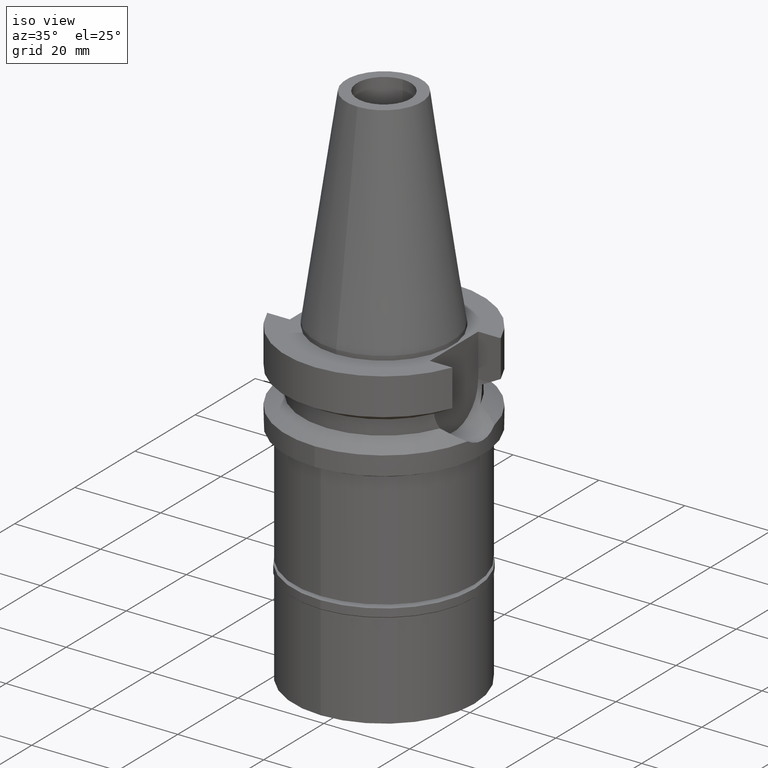
[diagram: clean part render]
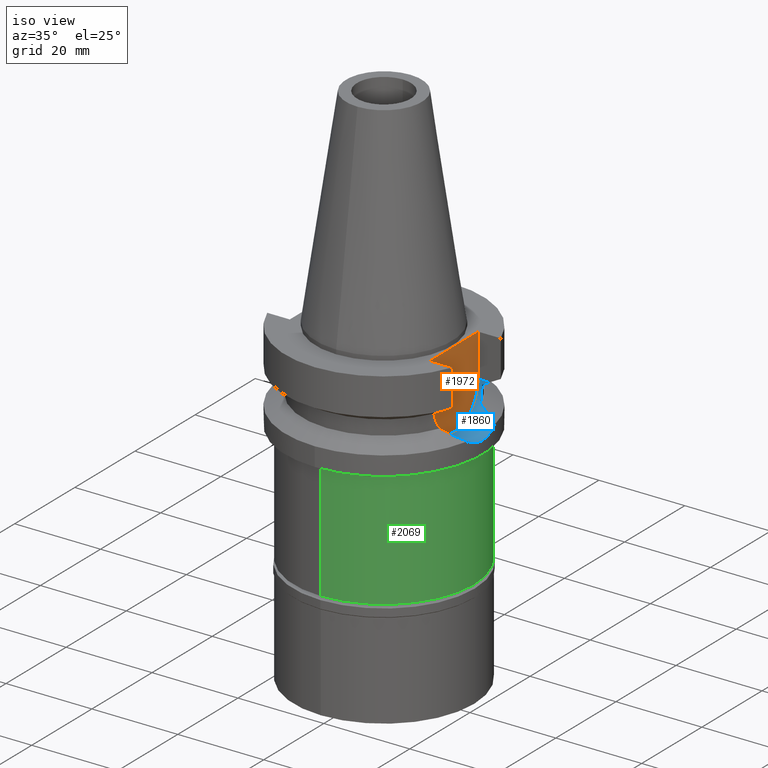
[diagram: same view with three faces highlighted in distinct colors, each labeled with its STEP entity id]
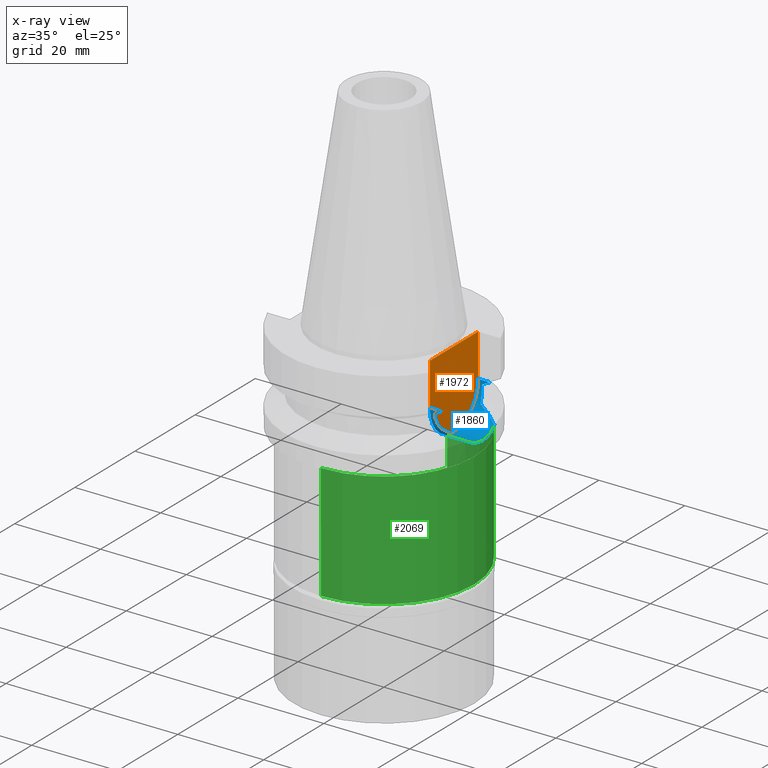
[diagram: x-ray of the same camera — body ghosted, the three highlighted faces saturated]
A machine part, iso view with three faces highlighted in distinct colors.
The next image is the same camera in x-ray (body ghosted, the three faces saturated) — at least one of them is partly hidden behind the body in this view.
Their STEP definitions:

[orange] entity #1972 — the highlighted planar face has unit normal (1, 0, 0).
#45 = VERTEX_POINT ( 'NONE', #2918 ) ;
#172 = VECTOR ( 'NONE', #2040, 1000.000000000000000 ) ;
#315 = LINE ( 'NONE', #1733, #2163 ) ;
#322 = VERTEX_POINT ( 'NONE', #1371 ) ;
#361 = FACE_OUTER_BOUND ( 'NONE', #435, .T. ) ;
#390 = EDGE_CURVE ( 'NONE', #45, #322, #315, .T. ) ;
#435 = EDGE_LOOP ( 'NONE', ( #2091, #1141, #2734, #2272 ) ) ;
#966 = DIRECTION ( 'NONE',  ( 0.0000000000000000000, 0.0000000000000000000, -1.000000000000000000 ) ) ;
#1057 = CIRCLE ( 'NONE', #2671, 8.050000000000000711 ) ;
#1102 = DIRECTION ( 'NONE',  ( 0.0000000000000000000, 1.000000000000000000, 0.0000000000000000000 ) ) ;
#1135 = LINE ( 'NONE', #2311, #172 ) ;
#1141 = ORIENTED_EDGE ( 'NONE', *, *, #1233, .F. ) ;
#1233 = EDGE_CURVE ( 'NONE', #322, #2595, #1057, .T. ) ;
#1311 = PLANE ( 'NONE',  #1943 ) ;
#1371 = CARTESIAN_POINT ( 'NONE',  ( 16.29999999999999716, 8.050000000000000711, -10.94999999999999929 ) ) ;
#1527 = EDGE_CURVE ( 'NONE', #45, #2016, #1932, .T. ) ;
#1587 = DIRECTION ( 'NONE',  ( 0.0000000000000000000, 0.0000000000000000000, -1.000000000000000000 ) ) ;
#1733 = CARTESIAN_POINT ( 'NONE',  ( 16.29999999999999716, 8.050000000000000711, -1.000000000000000000 ) ) ;
#1799 = CARTESIAN_POINT ( 'NONE',  ( 16.29999999999999716, -8.050000000000000711, -1.000000000000000000 ) ) ;
#1932 = LINE ( 'NONE', #2612, #1938 ) ;
#1938 = VECTOR ( 'NONE', #2170, 1000.000000000000000 ) ;
#1943 = AXIS2_PLACEMENT_3D ( 'NONE', #2237, #2946, #1102 ) ;
#1972 = ADVANCED_FACE ( 'NONE', ( #361 ), #1311, .T. ) ;
#2016 = VERTEX_POINT ( 'NONE', #1799 ) ;
#2040 = DIRECTION ( 'NONE',  ( 0.0000000000000000000, 0.0000000000000000000, 1.000000000000000000 ) ) ;
#2083 = EDGE_CURVE ( 'NONE', #2595, #2016, #1135, .T. ) ;
#2091 = ORIENTED_EDGE ( 'NONE', *, *, #2083, .F. ) ;
#2098 = CARTESIAN_POINT ( 'NONE',  ( 16.29999999999999716, -8.050000000000000711, -10.94999999999999929 ) ) ;
#2163 = VECTOR ( 'NONE', #966, 1000.000000000000000 ) ;
#2170 = DIRECTION ( 'NONE',  ( 0.0000000000000000000, -1.000000000000000000, 0.0000000000000000000 ) ) ;
#2237 = CARTESIAN_POINT ( 'NONE',  ( 16.29999999999999716, 0.0000000000000000000, 0.0000000000000000000 ) ) ;
#2272 = ORIENTED_EDGE ( 'NONE', *, *, #1527, .T. ) ;
#2311 = CARTESIAN_POINT ( 'NONE',  ( 16.29999999999999716, -8.050000000000000711, -10.94999999999999929 ) ) ;
#2595 = VERTEX_POINT ( 'NONE', #2098 ) ;
#2612 = CARTESIAN_POINT ( 'NONE',  ( 16.29999999999999716, 8.050000000000000711, -1.000000000000000000 ) ) ;
#2671 = AXIS2_PLACEMENT_3D ( 'NONE', #2984, #3015, #1587 ) ;
#2734 = ORIENTED_EDGE ( 'NONE', *, *, #390, .F. ) ;
#2918 = CARTESIAN_POINT ( 'NONE',  ( 16.29999999999999716, 8.050000000000000711, -1.000000000000000000 ) ) ;
#2946 = DIRECTION ( 'NONE',  ( 1.000000000000000000, 0.0000000000000000000, 0.0000000000000000000 ) ) ;
#2984 = CARTESIAN_POINT ( 'NONE',  ( 16.29999999999999716, 0.0000000000000000000, -10.94999999999999929 ) ) ;
#3015 = DIRECTION ( 'NONE',  ( -1.000000000000000000, 0.0000000000000000000, 0.0000000000000000000 ) ) ;

[blue] entity #1860 — the highlighted cylindrical surface (partial cylindrical patch) has radius 8.05 mm, axis along (1, 0, 0).
#6 = CARTESIAN_POINT ( 'NONE',  ( 18.30417677519795916, -8.050000009833846448, -11.30245973939780235 ) ) ;
#30 = CARTESIAN_POINT ( 'NONE',  ( 18.96736186693999926, -8.050001277873001015, -10.94999977540000025 ) ) ;
#80 = CARTESIAN_POINT ( 'NONE',  ( 18.96736186693999926, -8.050001277873001015, -10.94999977540000025 ) ) ;
#94 = CARTESIAN_POINT ( 'NONE',  ( 17.50086807631718600, -7.400179108393509786, -14.16641331484967559 ) ) ;
#95 = CARTESIAN_POINT ( 'NONE',  ( 22.77613773200974379, -3.202598962454526799, -18.33823203038533833 ) ) ;
#121 = CARTESIAN_POINT ( 'NONE',  ( 17.25079912590762632, -7.963111191490122920, -12.16468723360218007 ) ) ;
#128 = CARTESIAN_POINT ( 'NONE',  ( 22.94843267720124658, 1.547385716471629369, -18.85239223955501231 ) ) ;
#173 = CARTESIAN_POINT ( 'NONE',  ( 22.91436099164421236, 1.985013697924416842, -18.75255439334301855 ) ) ;
#174 = CARTESIAN_POINT ( 'NONE',  ( 16.29999999999999716, 8.050000000000000711, -10.94999999999999929 ) ) ;
#183 = VERTEX_POINT ( 'NONE', #2709 ) ;
#189 = CARTESIAN_POINT ( 'NONE',  ( 17.23531622902000038, 7.996491146276001771, -11.87660607782000000 ) ) ;
#190 = CARTESIAN_POINT ( 'NONE',  ( 22.55786346208000026, -4.488072640470000430, -17.63279163029000074 ) ) ;
#200 = ORIENTED_EDGE ( 'NONE', *, *, #3006, .T. ) ;
#207 = CARTESIAN_POINT ( 'NONE',  ( 17.68527465920666586, 6.947815191073233088, -15.03067689317560784 ) ) ;
#210 = VERTEX_POINT ( 'NONE', #1344 ) ;
#246 = CARTESIAN_POINT ( 'NONE',  ( 21.95747312947040086, 4.900254791556259981, -17.34184556698619772 ) ) ;
#263 = CARTESIAN_POINT ( 'NONE',  ( 22.26948351223554923, 4.696292300769631112, -17.49295411742071238 ) ) ;
#276 = ORIENTED_EDGE ( 'NONE', *, *, #1233, .T. ) ;
#313 = B_SPLINE_CURVE_WITH_KNOTS ( 'NONE', 3,
 ( #474, #263, #246, #2349, #1208, #1467, #2138, #971, #2870, #1907, #489, #2856, #2367 ),
 .UNSPECIFIED., .F., .F.,
 ( 4, 2, 1, 1, 1, 2, 2, 4 ),
 ( 0.0000000000000000000, 0.2500000000000039413, 0.3750000000000064948, 0.4375000000000064948, 0.4687500000000065503, 0.4843750000000070499, 0.5000000000000074385, 1.000000000000000000 ),
 .UNSPECIFIED. ) ;
#322 = VERTEX_POINT ( 'NONE', #1371 ) ;
#328 = CARTESIAN_POINT ( 'NONE',  ( 17.38156622603388968, -7.673725376824387823, -13.38458314372824454 ) ) ;
#405 = EDGE_CURVE ( 'NONE', #859, #523, #1531, .T. ) ;
#431 = CARTESIAN_POINT ( 'NONE',  ( 19.69410173734316771, -6.060669938305753845, -16.25007166132096614 ) ) ;
#439 = ORIENTED_EDGE ( 'NONE', *, *, #2436, .T. ) ;
#451 = CARTESIAN_POINT ( 'NONE',  ( 17.43825996245988819, 7.543902337193857832, -13.75966030957123820 ) ) ;
#465 = AXIS2_PLACEMENT_3D ( 'NONE', #2255, #549, #565 ) ;
#469 = CARTESIAN_POINT ( 'NONE',  ( 17.62113139266513429, 7.108367418708962937, -14.74095000844944536 ) ) ;
#474 = CARTESIAN_POINT ( 'NONE',  ( 22.55786346208000026, 4.488072640470000430, -17.63279163029000074 ) ) ;
#483 = EDGE_CURVE ( 'NONE', #1673, #925, #1021, .T. ) ;
#486 = CARTESIAN_POINT ( 'NONE',  ( 17.32791110705245075, 7.797407455527095799, -13.04850004286706699 ) ) ;
#489 = CARTESIAN_POINT ( 'NONE',  ( 19.73004640630102813, 6.069927389815940266, -16.26677919667542582 ) ) ;
#517 = EDGE_CURVE ( 'NONE', #523, #1846, #1716, .T. ) ;
#523 = VERTEX_POINT ( 'NONE', #1306 ) ;
#549 = DIRECTION ( 'NONE',  ( 1.000000000000000000, 0.0000000000000000000, 0.0000000000000000000 ) ) ;
#565 = DIRECTION ( 'NONE',  ( 0.0000000000000000000, 0.0000000000000000000, -1.000000000000000000 ) ) ;
#575 = CARTESIAN_POINT ( 'NONE',  ( 23.00000063371999914, 1.443369101333999963E-13, -19.00000207062000257 ) ) ;
#593 = CARTESIAN_POINT ( 'NONE',  ( 22.83400210089063620, -2.757209696368690288, -18.51367956029167416 ) ) ;
#664 = CARTESIAN_POINT ( 'NONE',  ( 18.77240399682779781, -6.425413999993287995, -15.80788163195203921 ) ) ;
#668 = DIRECTION ( 'NONE',  ( 0.9999999999976612042, -2.130104035149915589E-06, -3.746083735727856140E-07 ) ) ;
#714 = CARTESIAN_POINT ( 'NONE',  ( 17.42527060183159904, 7.573803216216433043, -13.67765101995079924 ) ) ;
#794 = CARTESIAN_POINT ( 'NONE',  ( 17.47454244272013923, 7.459747681859946411, -13.97656327294564527 ) ) ;
#796 = CARTESIAN_POINT ( 'NONE',  ( 22.87999223066082166, -2.345192716999932703, -18.65082438113866914 ) ) ;
#839 = CARTESIAN_POINT ( 'NONE',  ( 17.41902886904237491, -7.588145056449484116, -13.63749496349419843 ) ) ;
#855 = CARTESIAN_POINT ( 'NONE',  ( 22.89878317144584230, 2.154771475023029570, -18.70653894763858105 ) ) ;
#859 = VERTEX_POINT ( 'NONE', #30 ) ;
#925 = VERTEX_POINT ( 'NONE', #1230 ) ;
#938 = CARTESIAN_POINT ( 'NONE',  ( 17.51072787940859854, 7.374839633894187507, -14.18046796346550309 ) ) ;
#964 = CARTESIAN_POINT ( 'NONE',  ( 20.02089082506718398, -5.918315301219667646, -16.40720064908779818 ) ) ;
#971 = CARTESIAN_POINT ( 'NONE',  ( 20.63928245645380954, 5.628726883249373536, -16.70501526014500726 ) ) ;
#990 = ORIENTED_EDGE ( 'NONE', *, *, #2928, .F. ) ;
#1021 = B_SPLINE_CURVE_WITH_KNOTS ( 'NONE', 3,
 ( #1658, #207, #469, #2106, #938, #794, #2558, #451, #1873, #714, #2592, #1400, #486, #2327, #1435 ),
 .UNSPECIFIED., .F., .F.,
 ( 4, 2, 2, 1, 1, 1, 2, 2, 4 ),
 ( 0.0000000000000000000, 0.2500000000000016098, 0.3750000000000026645, 0.4375000000000037192, 0.4687500000000031641, 0.4843750000000026645, 0.4921875000000029421, 0.5000000000000032196, 1.000000000000000000 ),
 .UNSPECIFIED. ) ;
#1057 = CIRCLE ( 'NONE', #2671, 8.050000000000000711 ) ;
#1068 = CARTESIAN_POINT ( 'NONE',  ( 17.41740973184857921, -7.591861673413504263, -13.62698225825793941 ) ) ;
#1071 = CARTESIAN_POINT ( 'NONE',  ( 22.86647651648096868, -2.473921394403583385, -18.61066494074714583 ) ) ;
#1089 = CARTESIAN_POINT ( 'NONE',  ( 22.70474339552581000, 3.749827574165796484, -18.12858705042842189 ) ) ;
#1100 = CARTESIAN_POINT ( 'NONE',  ( 18.96738966530000070, 8.049994318182998043, -10.95000099923000114 ) ) ;
#1152 = LINE ( 'NONE', #174, #1363 ) ;
#1153 = CARTESIAN_POINT ( 'NONE',  ( 17.72682660392796095, -8.027186146807153477, -11.61172867117429419 ) ) ;
#1155 = B_SPLINE_CURVE_WITH_KNOTS ( 'NONE', 3,
 ( #2279, #2765, #664, #1609, #431, #964, #1886, #1186, #1899, #2587, #3041, #2831, #2782, #2847 ),
 .UNSPECIFIED., .F., .F.,
 ( 4, 2, 2, 1, 1, 2, 2, 4 ),
 ( 0.0000000000000000000, 0.2499999999999948930, 0.3749999999999923395, 0.4374999999999906741, 0.4687499999999901190, 0.4843749999999901745, 0.4999999999999902300, 1.000000000000000000 ),
 .UNSPECIFIED. ) ;
#1162 = ORIENTED_EDGE ( 'NONE', *, *, #2125, .F. ) ;
#1186 = CARTESIAN_POINT ( 'NONE',  ( 20.36436667541638101, -5.761230050744451603, -16.57253154911682458 ) ) ;
#1208 = CARTESIAN_POINT ( 'NONE',  ( 21.19341988183201764, 5.344394474838599862, -16.97240432406389843 ) ) ;
#1230 = CARTESIAN_POINT ( 'NONE',  ( 17.23531622902000038, 7.996491146276001771, -11.87660607782000000 ) ) ;
#1233 = EDGE_CURVE ( 'NONE', #322, #2595, #1057, .T. ) ;
#1253 = ORIENTED_EDGE ( 'NONE', *, *, #405, .T. ) ;
#1254 = CARTESIAN_POINT ( 'NONE',  ( 18.96736186693999926, -8.050001277873001015, -10.94999977540000025 ) ) ;
#1270 = CARTESIAN_POINT ( 'NONE',  ( 17.75736593456000278, -6.758398853743999624, -15.32339055352999857 ) ) ;
#1282 = CARTESIAN_POINT ( 'NONE',  ( 22.96072292176802065, -1.550239297806613958, -18.89053771800536552 ) ) ;
#1306 = CARTESIAN_POINT ( 'NONE',  ( 17.23531135313000107, -7.996501749111999402, -11.87660739354000050 ) ) ;
#1309 = CARTESIAN_POINT ( 'NONE',  ( 22.63131207852558902, -4.118906632266526202, -17.88071853761644192 ) ) ;
#1322 = CARTESIAN_POINT ( 'NONE',  ( 17.23531135313000107, -7.996501749111999402, -11.87660739354000050 ) ) ;
#1344 = CARTESIAN_POINT ( 'NONE',  ( 18.96738966530000070, 8.049994318182998043, -10.95000099923000114 ) ) ;
#1363 = VECTOR ( 'NONE', #668, 1000.000000000000000 ) ;
#1371 = CARTESIAN_POINT ( 'NONE',  ( 16.29999999999999716, 8.050000000000000711, -10.94999999999999929 ) ) ;
#1400 = CARTESIAN_POINT ( 'NONE',  ( 17.42163631444919858, 7.582155995951294969, -13.65434988420305729 ) ) ;
#1412 = EDGE_CURVE ( 'NONE', #2496, #1673, #313, .T. ) ;
#1435 = CARTESIAN_POINT ( 'NONE',  ( 17.23531622902000038, 7.996491146276001771, -11.87660607782000000 ) ) ;
#1467 = CARTESIAN_POINT ( 'NONE',  ( 20.87388838209990638, 5.511312042766353336, -16.81816514290696674 ) ) ;
#1477 = CARTESIAN_POINT ( 'NONE',  ( 22.87445461030406690, -2.398694468097761323, -18.63437673731583288 ) ) ;
#1490 = B_SPLINE_CURVE_WITH_KNOTS ( 'NONE', 3,
 ( #2899, #1309, #1493, #95, #2706, #593, #2177, #1071, #1477, #1506, #796, #2678, #1282, #1720, #575 ),
 .UNSPECIFIED., .F., .F.,
 ( 4, 2, 2, 1, 1, 1, 2, 2, 4 ),
 ( 0.0000000000000000000, 0.2500000000000028866, 0.3750000000000046629, 0.4375000000000049960, 0.4687500000000048850, 0.4843750000000051625, 0.4921875000000050515, 0.5000000000000049960, 1.000000000000000000 ),
 .UNSPECIFIED. ) ;
#1493 = CARTESIAN_POINT ( 'NONE',  ( 22.69506172306373415, -3.747764842209013736, -18.08562956465713256 ) ) ;
#1506 = CARTESIAN_POINT ( 'NONE',  ( 22.87778854850082766, -2.366576874369036076, -18.64427962363670943 ) ) ;
#1531 = B_SPLINE_CURVE_WITH_KNOTS ( 'NONE', 3,
 ( #80, #6, #1153, #2190 ),
 .UNSPECIFIED., .F., .F.,
 ( 4, 4 ),
 ( 0.0000000000000000000, 1.000000000000000000 ),
 .UNSPECIFIED. ) ;
#1538 = ORIENTED_EDGE ( 'NONE', *, *, #1412, .T. ) ;
#1544 = CARTESIAN_POINT ( 'NONE',  ( 17.61322740991396429, -7.137115852045588404, -14.73814199274329084 ) ) ;
#1546 = CARTESIAN_POINT ( 'NONE',  ( 18.30334768190532557, 8.049999956193227391, -11.30291651679201870 ) ) ;
#1587 = DIRECTION ( 'NONE',  ( 0.0000000000000000000, 0.0000000000000000000, -1.000000000000000000 ) ) ;
#1595 = CARTESIAN_POINT ( 'NONE',  ( 23.00000063371999914, 1.443369101333999963E-13, -19.00000207062000257 ) ) ;
#1609 = CARTESIAN_POINT ( 'NONE',  ( 19.46906232077696686, -6.153562748221116152, -16.14199193557223211 ) ) ;
#1658 = CARTESIAN_POINT ( 'NONE',  ( 17.75736593456000278, 6.758398853743999624, -15.32339055352999857 ) ) ;
#1673 = VERTEX_POINT ( 'NONE', #2640 ) ;
#1700 = VECTOR ( 'NONE', #2039, 1000.000000000000114 ) ;
#1716 = B_SPLINE_CURVE_WITH_KNOTS ( 'NONE', 3,
 ( #1322, #121, #2689, #2035, #2020, #2262, #328, #1808, #1779, #2425, #1068, #839, #94, #1544, #2445 ),
 .UNSPECIFIED., .F., .F.,
 ( 4, 2, 2, 1, 1, 1, 2, 2, 4 ),
 ( 0.0000000000000000000, 0.2500000000000057732, 0.3750000000000092149, 0.4375000000000107692, 0.4687500000000115463, 0.4843750000000119349, 0.4921875000000116573, 0.5000000000000113243, 1.000000000000000000 ),
 .UNSPECIFIED. ) ;
#1720 = CARTESIAN_POINT ( 'NONE',  ( 23.00000063371999914, -0.7635895630532860689, -19.00000000000000355 ) ) ;
#1769 = CARTESIAN_POINT ( 'NONE',  ( 22.55786346208000026, 4.488072640470000430, -17.63279163029000074 ) ) ;
#1779 = CARTESIAN_POINT ( 'NONE',  ( 17.41029288300379463, -7.608179589552457323, -13.58035844464430575 ) ) ;
#1798 = CARTESIAN_POINT ( 'NONE',  ( 22.89059138668635285, 2.239534525042667479, -18.68227636466271946 ) ) ;
#1808 = CARTESIAN_POINT ( 'NONE',  ( 17.40050758145919474, -7.630565565469848544, -13.51508960625903555 ) ) ;
#1836 = CARTESIAN_POINT ( 'NONE',  ( 22.55786346208000026, 4.488072640470000430, -17.63279163029000074 ) ) ;
#1846 = VERTEX_POINT ( 'NONE', #1270 ) ;
#1860 = ADVANCED_FACE ( 'NONE', ( #1982 ), #2655, .F. ) ;
#1867 = EDGE_LOOP ( 'NONE', ( #1538, #2028, #439, #1162, #276, #990, #1253, #2090, #1878, #2565, #200 ) ) ;
#1873 = CARTESIAN_POINT ( 'NONE',  ( 17.42911851113775157, 7.564954524542320868, -13.70217975904774477 ) ) ;
#1878 = ORIENTED_EDGE ( 'NONE', *, *, #2564, .T. ) ;
#1886 = CARTESIAN_POINT ( 'NONE',  ( 20.18159285964787841, -5.846383981996909007, -16.48451795112418594 ) ) ;
#1899 = CARTESIAN_POINT ( 'NONE',  ( 20.44168861976523743, -5.724480107251792127, -16.60978189773313218 ) ) ;
#1907 = CARTESIAN_POINT ( 'NONE',  ( 20.56945519801698907, 5.662943313299061643, -16.67135258765440042 ) ) ;
#1982 = FACE_OUTER_BOUND ( 'NONE', #1867, .T. ) ;
#2020 = CARTESIAN_POINT ( 'NONE',  ( 17.33753429472910312, -7.772924035330798453, -13.04956639104181626 ) ) ;
#2022 = CARTESIAN_POINT ( 'NONE',  ( 17.72598986981198976, 8.027133616248125492, -11.61218197823705545 ) ) ;
#2023 = CARTESIAN_POINT ( 'NONE',  ( 22.99017816581165974, 0.7692921464577845425, -18.97278688085471288 ) ) ;
#2028 = ORIENTED_EDGE ( 'NONE', *, *, #483, .T. ) ;
#2035 = CARTESIAN_POINT ( 'NONE',  ( 17.32020187250967425, -7.811452264079356667, -12.90108126328219740 ) ) ;
#2039 = DIRECTION ( 'NONE',  ( -0.9999999999998816502, 4.790775581495907912E-07, -8.420253777260848103E-08 ) ) ;
#2090 = ORIENTED_EDGE ( 'NONE', *, *, #517, .T. ) ;
#2098 = CARTESIAN_POINT ( 'NONE',  ( 16.29999999999999716, -8.050000000000000711, -10.94999999999999929 ) ) ;
#2106 = CARTESIAN_POINT ( 'NONE',  ( 17.53683850607051653, 7.312769253924538582, -14.31902480999137950 ) ) ;
#2125 = EDGE_CURVE ( 'NONE', #322, #210, #1152, .T. ) ;
#2138 = CARTESIAN_POINT ( 'NONE',  ( 20.71024576433280373, 5.593671726611467498, -16.73923149005364053 ) ) ;
#2177 = CARTESIAN_POINT ( 'NONE',  ( 22.84972471004551409, -2.625489052305981730, -18.56078264746372852 ) ) ;
#2190 = CARTESIAN_POINT ( 'NONE',  ( 17.23531135313000107, -7.996501749111999402, -11.87660739354000050 ) ) ;
#2236 = CARTESIAN_POINT ( 'NONE',  ( 23.00000063371999914, 0.3818371252270340577, -19.00000000000001066 ) ) ;
#2254 = CARTESIAN_POINT ( 'NONE',  ( 22.88321380690928919, 2.313548464796129078, -18.66039023119281026 ) ) ;
#2255 = CARTESIAN_POINT ( 'NONE',  ( 16.29999999999999716, 0.0000000000000000000, -10.94999999999999929 ) ) ;
#2262 = CARTESIAN_POINT ( 'NONE',  ( 17.36640948880742741, -7.707982828101324735, -13.27282317322025129 ) ) ;
#2279 = CARTESIAN_POINT ( 'NONE',  ( 17.75736593456000278, -6.758398853743999624, -15.32339055352999857 ) ) ;
#2303 = EDGE_CURVE ( 'NONE', #3016, #183, #1490, .T. ) ;
#2327 = CARTESIAN_POINT ( 'NONE',  ( 17.26628505399860103, 7.929743580510503875, -12.45264544718342314 ) ) ;
#2349 = CARTESIAN_POINT ( 'NONE',  ( 21.45401190594164476, 5.197756024952405518, -17.09835376329824896 ) ) ;
#2367 = CARTESIAN_POINT ( 'NONE',  ( 17.75736593456000278, 6.758398853743999624, -15.32339055352999857 ) ) ;
#2403 = LINE ( 'NONE', #1254, #1700 ) ;
#2425 = CARTESIAN_POINT ( 'NONE',  ( 17.41455400305832768, -7.598412036627368416, -13.60833259787202820 ) ) ;
#2436 = EDGE_CURVE ( 'NONE', #925, #210, #2464, .T. ) ;
#2445 = CARTESIAN_POINT ( 'NONE',  ( 17.75736593456000278, -6.758398853743999624, -15.32339055352999857 ) ) ;
#2464 = B_SPLINE_CURVE_WITH_KNOTS ( 'NONE', 3,
 ( #189, #2022, #1546, #1100 ),
 .UNSPECIFIED., .F., .F.,
 ( 4, 4 ),
 ( 0.0000000000000000000, 1.000000000000000000 ),
 .UNSPECIFIED. ) ;
#2496 = VERTEX_POINT ( 'NONE', #1836 ) ;
#2520 = CARTESIAN_POINT ( 'NONE',  ( 22.88699429150508990, 2.275833945443854756, -18.67160857845627930 ) ) ;
#2539 = B_SPLINE_CURVE_WITH_KNOTS ( 'NONE', 3,
 ( #1595, #2236, #2023, #2945, #128, #2961, #173, #855, #1798, #2520, #2721, #2254, #2741, #1089, #1769 ),
 .UNSPECIFIED., .F., .F.,
 ( 4, 2, 2, 1, 1, 1, 2, 2, 4 ),
 ( 0.0000000000000000000, 0.2500000000000085487, 0.3750000000000127121, 0.4375000000000149880, 0.4687500000000158207, 0.4843750000000163203, 0.4921875000000167089, 0.5000000000000170974, 1.000000000000000000 ),
 .UNSPECIFIED. ) ;
#2558 = CARTESIAN_POINT ( 'NONE',  ( 17.45719485020201844, 7.500152504448616142, -13.87559139655189355 ) ) ;
#2564 = EDGE_CURVE ( 'NONE', #1846, #3016, #1155, .T. ) ;
#2565 = ORIENTED_EDGE ( 'NONE', *, *, #2303, .T. ) ;
#2587 = CARTESIAN_POINT ( 'NONE',  ( 20.49301220689103431, -5.699924389956656512, -16.63451102356273736 ) ) ;
#2592 = CARTESIAN_POINT ( 'NONE',  ( 17.42272085241554791, 7.579664041000407693, -13.66132223650644661 ) ) ;
#2595 = VERTEX_POINT ( 'NONE', #2098 ) ;
#2640 = CARTESIAN_POINT ( 'NONE',  ( 17.75736593456000278, 6.758398853743999624, -15.32339055352999857 ) ) ;
#2655 = CYLINDRICAL_SURFACE ( 'NONE', #465, 8.050000000000000711 ) ;
#2671 = AXIS2_PLACEMENT_3D ( 'NONE', #2984, #3015, #1587 ) ;
#2678 = CARTESIAN_POINT ( 'NONE',  ( 22.88094006936554692, -2.335937757597574382, -18.65363902239957739 ) ) ;
#2689 = CARTESIAN_POINT ( 'NONE',  ( 17.27395772734975310, -7.913379800481585846, -12.45762674857386720 ) ) ;
#2706 = CARTESIAN_POINT ( 'NONE',  ( 22.80073832534822031, -3.022754176033157769, -18.41332850632801055 ) ) ;
#2709 = CARTESIAN_POINT ( 'NONE',  ( 23.00000063371999914, 1.443369101333999963E-13, -19.00000207062000257 ) ) ;
#2721 = CARTESIAN_POINT ( 'NONE',  ( 22.88457704354326694, 2.300027115010400358, -18.66443675561224680 ) ) ;
#2741 = CARTESIAN_POINT ( 'NONE',  ( 22.81283258110581258, 3.006578350123032095, -18.45139701111728670 ) ) ;
#2765 = CARTESIAN_POINT ( 'NONE',  ( 18.27924501519427736, -6.597549422627201565, -15.57195847756570650 ) ) ;
#2782 = CARTESIAN_POINT ( 'NONE',  ( 21.98108115858349265, -4.904528137356409800, -17.35310574077606205 ) ) ;
#2831 = CARTESIAN_POINT ( 'NONE',  ( 21.30979308134237726, -5.303996943103468809, -17.02817402594463658 ) ) ;
#2847 = CARTESIAN_POINT ( 'NONE',  ( 22.55786346208000026, -4.488072640470000430, -17.63279163029000074 ) ) ;
#2856 = CARTESIAN_POINT ( 'NONE',  ( 18.80116219516603238, 6.436688248829694814, -15.82054454809797939 ) ) ;
#2870 = CARTESIAN_POINT ( 'NONE',  ( 20.59178897177729439, 5.652042537672824274, -16.68211846729052183 ) ) ;
#2899 = CARTESIAN_POINT ( 'NONE',  ( 22.55786346208000026, -4.488072640470000430, -17.63279163029000074 ) ) ;
#2928 = EDGE_CURVE ( 'NONE', #859, #2595, #2403, .T. ) ;
#2945 = CARTESIAN_POINT ( 'NONE',  ( 22.96071076208666284, 1.352603942406116033, -18.88798258441913802 ) ) ;
#2961 = CARTESIAN_POINT ( 'NONE',  ( 22.92633212440749801, 1.839198316306072778, -18.78771497115880251 ) ) ;
#2984 = CARTESIAN_POINT ( 'NONE',  ( 16.29999999999999716, 0.0000000000000000000, -10.94999999999999929 ) ) ;
#3006 = EDGE_CURVE ( 'NONE', #183, #2496, #2539, .T. ) ;
#3015 = DIRECTION ( 'NONE',  ( -1.000000000000000000, 0.0000000000000000000, 0.0000000000000000000 ) ) ;
#3016 = VERTEX_POINT ( 'NONE', #190 ) ;
#3041 = CARTESIAN_POINT ( 'NONE',  ( 20.52006817251336201, -5.686888308400432912, -16.64754938785253913 ) ) ;

[green] entity #2069 — the highlighted cylindrical surface (partial cylindrical patch) has radius 21 mm, axis along (0, 0, -1).
#46 = CARTESIAN_POINT ( 'NONE',  ( 0.0000000000000000000, 1.888344131944999946E-14, -49.89999999999999858 ) ) ;
#120 = CIRCLE ( 'NONE', #917, 21.00000000000000000 ) ;
#197 = EDGE_CURVE ( 'NONE', #3018, #2295, #2949, .T. ) ;
#224 = AXIS2_PLACEMENT_3D ( 'NONE', #1354, #2025, #450 ) ;
#410 = ORIENTED_EDGE ( 'NONE', *, *, #197, .F. ) ;
#450 = DIRECTION ( 'NONE',  ( 0.0000000000000000000, -1.000000000000000000, 0.0000000000000000000 ) ) ;
#501 = EDGE_CURVE ( 'NONE', #2514, #2019, #2573, .T. ) ;
#512 = CARTESIAN_POINT ( 'NONE',  ( 0.0000000000000000000, 21.00000000000000000, -49.89999999999999858 ) ) ;
#633 = ORIENTED_EDGE ( 'NONE', *, *, #1823, .T. ) ;
#642 = AXIS2_PLACEMENT_3D ( 'NONE', #46, #1199, #1211 ) ;
#917 = AXIS2_PLACEMENT_3D ( 'NONE', #1968, #1723, #1299 ) ;
#924 = EDGE_CURVE ( 'NONE', #2019, #2295, #3003, .T. ) ;
#1199 = DIRECTION ( 'NONE',  ( 0.0000000000000000000, 0.0000000000000000000, 1.000000000000000000 ) ) ;
#1211 = DIRECTION ( 'NONE',  ( 0.0000000000000000000, -1.000000000000000000, 0.0000000000000000000 ) ) ;
#1299 = DIRECTION ( 'NONE',  ( 0.0000000000000000000, 1.000000000000000000, 0.0000000000000000000 ) ) ;
#1354 = CARTESIAN_POINT ( 'NONE',  ( 0.0000000000000000000, 1.888344131944999946E-14, 54.19500000000000028 ) ) ;
#1355 = CARTESIAN_POINT ( 'NONE',  ( 0.0000000000000000000, 21.00000000000000000, -23.00000000000000000 ) ) ;
#1374 = VECTOR ( 'NONE', #2059, 1000.000000000000000 ) ;
#1399 = FACE_OUTER_BOUND ( 'NONE', #2406, .T. ) ;
#1416 = CARTESIAN_POINT ( 'NONE',  ( 0.0000000000000000000, -21.00000000000000000, -23.00000000000000000 ) ) ;
#1635 = ORIENTED_EDGE ( 'NONE', *, *, #924, .T. ) ;
#1676 = VECTOR ( 'NONE', #2344, 1000.000000000000000 ) ;
#1723 = DIRECTION ( 'NONE',  ( 0.0000000000000000000, 0.0000000000000000000, -1.000000000000000000 ) ) ;
#1823 = EDGE_CURVE ( 'NONE', #3018, #2514, #120, .T. ) ;
#1968 = CARTESIAN_POINT ( 'NONE',  ( 0.0000000000000000000, 0.0000000000000000000, -23.00000000000000000 ) ) ;
#2019 = VERTEX_POINT ( 'NONE', #2962 ) ;
#2025 = DIRECTION ( 'NONE',  ( 0.0000000000000000000, 0.0000000000000000000, -1.000000000000000000 ) ) ;
#2059 = DIRECTION ( 'NONE',  ( 0.0000000000000000000, 0.0000000000000000000, -1.000000000000000000 ) ) ;
#2069 = ADVANCED_FACE ( 'NONE', ( #1399 ), #3011, .T. ) ;
#2295 = VERTEX_POINT ( 'NONE', #512 ) ;
#2309 = CARTESIAN_POINT ( 'NONE',  ( 0.0000000000000000000, -21.00000000000000000, -23.00000000000000000 ) ) ;
#2344 = DIRECTION ( 'NONE',  ( 0.0000000000000000000, 0.0000000000000000000, -1.000000000000000000 ) ) ;
#2406 = EDGE_LOOP ( 'NONE', ( #633, #2652, #1635, #410 ) ) ;
#2493 = CARTESIAN_POINT ( 'NONE',  ( 0.0000000000000000000, 21.00000000000000000, -23.00000000000000000 ) ) ;
#2514 = VERTEX_POINT ( 'NONE', #2309 ) ;
#2573 = LINE ( 'NONE', #1416, #1676 ) ;
#2652 = ORIENTED_EDGE ( 'NONE', *, *, #501, .T. ) ;
#2949 = LINE ( 'NONE', #1355, #1374 ) ;
#2962 = CARTESIAN_POINT ( 'NONE',  ( 0.0000000000000000000, -21.00000000000000000, -49.89999999999999858 ) ) ;
#3003 = CIRCLE ( 'NONE', #642, 21.00000000000000000 ) ;
#3011 = CYLINDRICAL_SURFACE ( 'NONE', #224, 21.00000000000000000 ) ;
#3018 = VERTEX_POINT ( 'NONE', #2493 ) ;